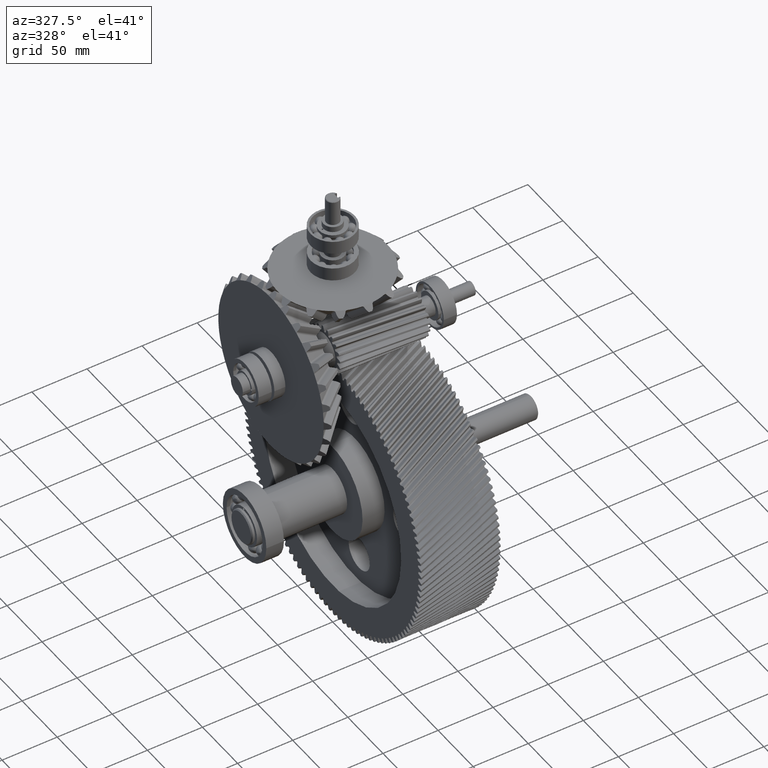
[diagram: clean part render]
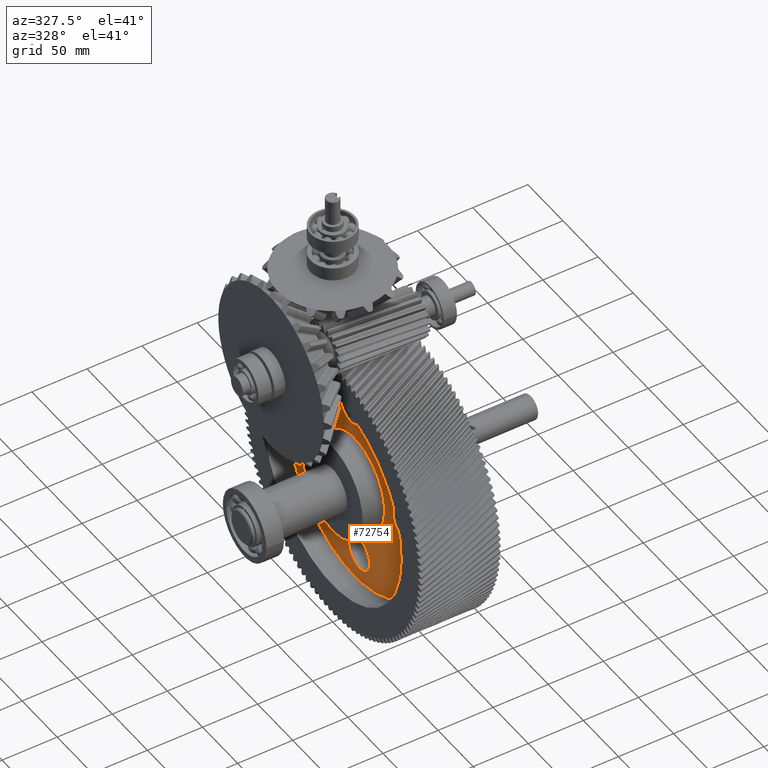
[diagram: same view with one face highlighted and labeled with its STEP entity id]
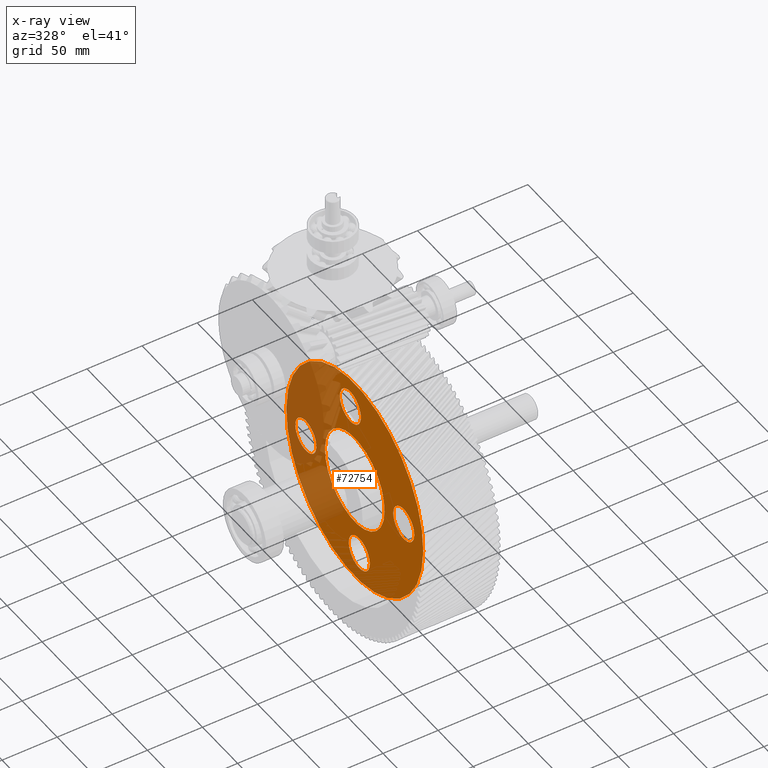
[diagram: x-ray of the same camera — body ghosted, the highlighted face saturated]
A machine part, auxiliary view. The second image highlights one B-rep face of the part: STEP entity #72754.
The next image is the same camera in x-ray: the body ghosted, the highlighted face saturated — about 37% of this face is hidden behind the body in this view.
In plain terms, the highlighted planar face has unit normal (-1, 0, 0).
Its self-contained STEP definition (entity closure, byte-faithful):
#45559=CARTESIAN_POINT('',(0.E0,0.E0,-2.E1));
#45560=DIRECTION('',(0.E0,0.E0,1.E0));
#45561=DIRECTION('',(1.E0,0.E0,0.E0));
#45562=AXIS2_PLACEMENT_3D('',#45559,#45560,#45561);
#45564=CARTESIAN_POINT('',(0.E0,0.E0,-2.E1));
#45565=DIRECTION('',(0.E0,0.E0,1.E0));
#45566=DIRECTION('',(-1.E0,0.E0,0.E0));
#45567=AXIS2_PLACEMENT_3D('',#45564,#45565,#45566);
#45569=CARTESIAN_POINT('',(0.E0,0.E0,-2.E1));
#45570=DIRECTION('',(0.E0,0.E0,-1.E0));
#45571=DIRECTION('',(1.E0,0.E0,0.E0));
#45572=AXIS2_PLACEMENT_3D('',#45569,#45570,#45571);
#45574=CARTESIAN_POINT('',(0.E0,0.E0,-2.E1));
#45575=DIRECTION('',(0.E0,0.E0,-1.E0));
#45576=DIRECTION('',(-1.E0,0.E0,0.E0));
#45577=AXIS2_PLACEMENT_3D('',#45574,#45575,#45576);
#45579=CARTESIAN_POINT('',(-7.E1,0.E0,-2.E1));
#45580=DIRECTION('',(0.E0,0.E0,1.E0));
#45581=DIRECTION('',(0.E0,1.E0,0.E0));
#45582=AXIS2_PLACEMENT_3D('',#45579,#45580,#45581);
#45584=CARTESIAN_POINT('',(-7.E1,0.E0,-2.E1));
#45585=DIRECTION('',(0.E0,0.E0,1.E0));
#45586=DIRECTION('',(0.E0,-1.E0,0.E0));
#45587=AXIS2_PLACEMENT_3D('',#45584,#45585,#45586);
#45589=CARTESIAN_POINT('',(0.E0,-7.E1,-2.E1));
#45590=DIRECTION('',(0.E0,0.E0,1.E0));
#45591=DIRECTION('',(-1.E0,0.E0,0.E0));
#45592=AXIS2_PLACEMENT_3D('',#45589,#45590,#45591);
#45594=CARTESIAN_POINT('',(0.E0,-7.E1,-2.E1));
#45595=DIRECTION('',(0.E0,0.E0,1.E0));
#45596=DIRECTION('',(1.E0,0.E0,0.E0));
#45597=AXIS2_PLACEMENT_3D('',#45594,#45595,#45596);
#45599=CARTESIAN_POINT('',(7.E1,0.E0,-2.E1));
#45600=DIRECTION('',(0.E0,0.E0,1.E0));
#45601=DIRECTION('',(0.E0,-1.E0,0.E0));
#45602=AXIS2_PLACEMENT_3D('',#45599,#45600,#45601);
#45604=CARTESIAN_POINT('',(7.E1,0.E0,-2.E1));
#45605=DIRECTION('',(0.E0,0.E0,1.E0));
#45606=DIRECTION('',(0.E0,1.E0,0.E0));
#45607=AXIS2_PLACEMENT_3D('',#45604,#45605,#45606);
#45609=CARTESIAN_POINT('',(0.E0,7.E1,-2.E1));
#45610=DIRECTION('',(0.E0,0.E0,1.E0));
#45611=DIRECTION('',(1.E0,0.E0,0.E0));
#45612=AXIS2_PLACEMENT_3D('',#45609,#45610,#45611);
#45614=CARTESIAN_POINT('',(0.E0,7.E1,-2.E1));
#45615=DIRECTION('',(0.E0,0.E0,1.E0));
#45616=DIRECTION('',(-1.E0,0.E0,0.E0));
#45617=AXIS2_PLACEMENT_3D('',#45614,#45615,#45616);
#48128=CARTESIAN_POINT('',(9.75E1,-1.193991194977E-14,-2.E1));
#48129=CARTESIAN_POINT('',(-9.75E1,2.388021824145E-14,-2.E1));
#48130=VERTEX_POINT('',#48128);
#48131=VERTEX_POINT('',#48129);
#48132=CARTESIAN_POINT('',(4.25E1,0.E0,-2.E1));
#48133=CARTESIAN_POINT('',(-4.25E1,0.E0,-2.E1));
#48134=VERTEX_POINT('',#48132);
#48135=VERTEX_POINT('',#48133);
#48160=CARTESIAN_POINT('',(-7.E1,1.5E1,-2.E1));
#48161=CARTESIAN_POINT('',(-7.E1,-1.5E1,-2.E1));
#48162=VERTEX_POINT('',#48160);
#48163=VERTEX_POINT('',#48161);
#48168=CARTESIAN_POINT('',(-1.5E1,-7.E1,-2.E1));
#48169=CARTESIAN_POINT('',(1.5E1,-7.E1,-2.E1));
#48170=VERTEX_POINT('',#48168);
#48171=VERTEX_POINT('',#48169);
#48176=CARTESIAN_POINT('',(7.E1,-1.5E1,-2.E1));
#48177=CARTESIAN_POINT('',(7.E1,1.5E1,-2.E1));
#48178=VERTEX_POINT('',#48176);
#48179=VERTEX_POINT('',#48177);
#48184=CARTESIAN_POINT('',(1.5E1,7.E1,-2.E1));
#48185=CARTESIAN_POINT('',(-1.5E1,7.E1,-2.E1));
#48186=VERTEX_POINT('',#48184);
#48187=VERTEX_POINT('',#48185);
#72714=CARTESIAN_POINT('',(0.E0,0.E0,-2.E1));
#72715=DIRECTION('',(0.E0,0.E0,1.E0));
#72716=DIRECTION('',(1.E0,0.E0,0.E0));
#72717=AXIS2_PLACEMENT_3D('',#72714,#72715,#72716);
#72718=PLANE('',#72717);
#72720=ORIENTED_EDGE('',*,*,#72719,.F.);
#72722=ORIENTED_EDGE('',*,*,#72721,.F.);
#72723=EDGE_LOOP('',(#72720,#72722));
#72724=FACE_OUTER_BOUND('',#72723,.F.);
#72726=ORIENTED_EDGE('',*,*,#72725,.F.);
#72728=ORIENTED_EDGE('',*,*,#72727,.F.);
#72729=EDGE_LOOP('',(#72726,#72728));
#72730=FACE_BOUND('',#72729,.F.);
#72731=ORIENTED_EDGE('',*,*,#72704,.T.);
#72733=ORIENTED_EDGE('',*,*,#72732,.T.);
#72734=EDGE_LOOP('',(#72731,#72733));
#72735=FACE_BOUND('',#72734,.F.);
#72737=ORIENTED_EDGE('',*,*,#72736,.T.);
#72739=ORIENTED_EDGE('',*,*,#72738,.T.);
#72740=EDGE_LOOP('',(#72737,#72739));
#72741=FACE_BOUND('',#72740,.F.);
#72743=ORIENTED_EDGE('',*,*,#72742,.T.);
#72745=ORIENTED_EDGE('',*,*,#72744,.T.);
#72746=EDGE_LOOP('',(#72743,#72745));
#72747=FACE_BOUND('',#72746,.F.);
#72749=ORIENTED_EDGE('',*,*,#72748,.T.);
#72751=ORIENTED_EDGE('',*,*,#72750,.T.);
#72752=EDGE_LOOP('',(#72749,#72751));
#72753=FACE_BOUND('',#72752,.F.);
#72754=ADVANCED_FACE('',(#72724,#72730,#72735,#72741,#72747,#72753),#72718,.T.);
#45563=CIRCLE('',#45562,9.75E1);
#45568=CIRCLE('',#45567,9.75E1);
#45573=CIRCLE('',#45572,4.25E1);
#45578=CIRCLE('',#45577,4.25E1);
#45583=CIRCLE('',#45582,1.5E1);
#45588=CIRCLE('',#45587,1.5E1);
#45593=CIRCLE('',#45592,1.5E1);
#45598=CIRCLE('',#45597,1.5E1);
#45603=CIRCLE('',#45602,1.5E1);
#45608=CIRCLE('',#45607,1.5E1);
#45613=CIRCLE('',#45612,1.5E1);
#45618=CIRCLE('',#45617,1.5E1);
#72704=EDGE_CURVE('',#48162,#48163,#45583,.T.);
#72719=EDGE_CURVE('',#48130,#48131,#45563,.T.);
#72721=EDGE_CURVE('',#48131,#48130,#45568,.T.);
#72725=EDGE_CURVE('',#48134,#48135,#45573,.T.);
#72727=EDGE_CURVE('',#48135,#48134,#45578,.T.);
#72732=EDGE_CURVE('',#48163,#48162,#45588,.T.);
#72736=EDGE_CURVE('',#48170,#48171,#45593,.T.);
#72738=EDGE_CURVE('',#48171,#48170,#45598,.T.);
#72742=EDGE_CURVE('',#48178,#48179,#45603,.T.);
#72744=EDGE_CURVE('',#48179,#48178,#45608,.T.);
#72748=EDGE_CURVE('',#48186,#48187,#45613,.T.);
#72750=EDGE_CURVE('',#48187,#48186,#45618,.T.);